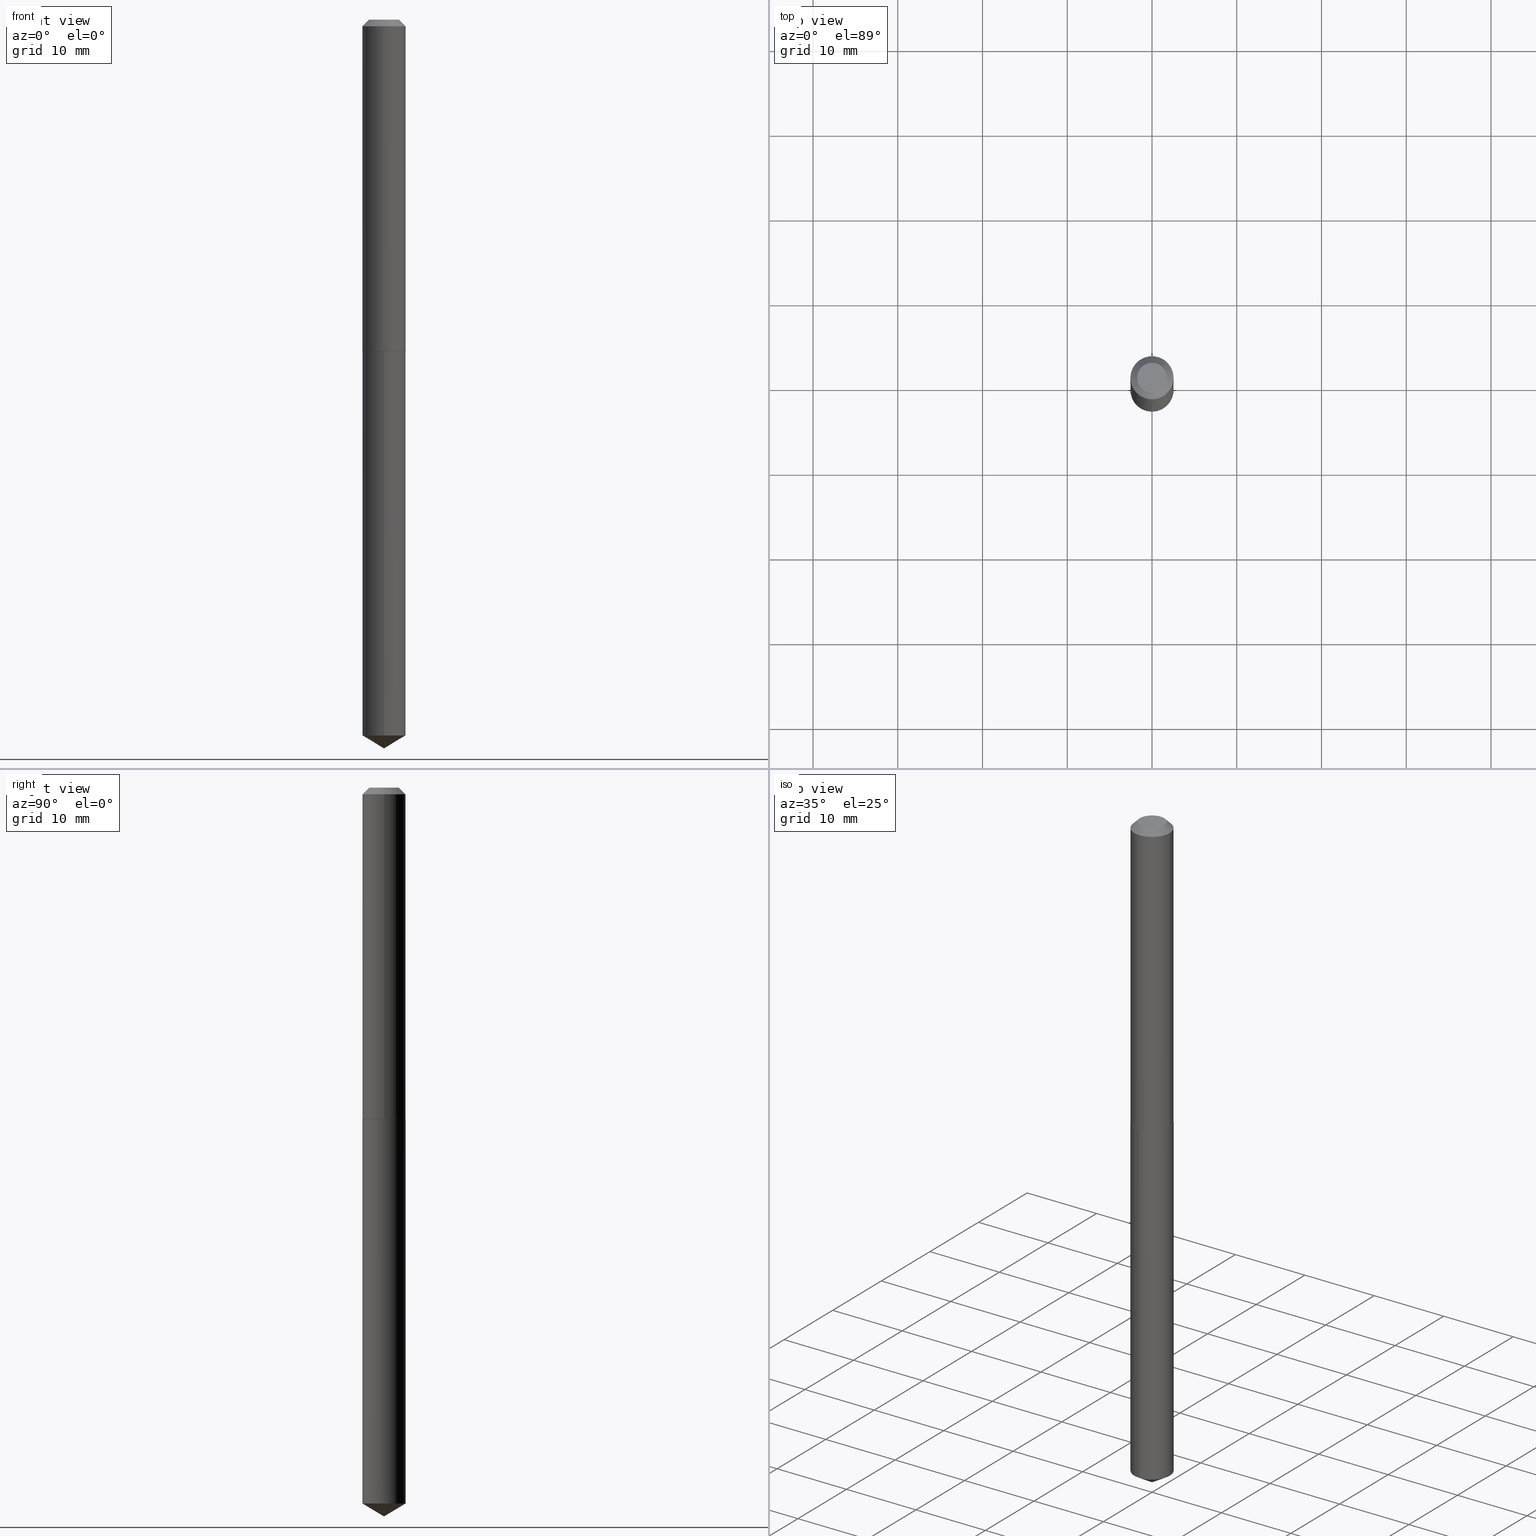
[diagram: canonical four-view strip — front | top / right | iso, engineering-drawing reading convention]
A machine part, canonical four-view strip (front | top / right | iso — engineering-drawing reading convention). The complete STEP part file that produces these views, byte-faithful:
ISO-10303-21;
HEADER;
FILE_DESCRIPTION (( 'STEP AP203' ),
    '1' );
FILE_NAME ('68326.STEP',
    '2024-04-23T13:06:25',
    ( '' ),
    ( '' ),
    'SwSTEP 2.0',
    'SolidWorks 2023',
    '' );
FILE_SCHEMA (( 'CONFIG_CONTROL_DESIGN' ));
ENDSEC;

DATA;
#1 = CONICAL_SURFACE ( 'NONE', #352, 0.1004000000000001835, 0.7853981633971067744 ) ;
#2 = APPROVAL ( #253, 'UNSPECIFIED' ) ;
#3 = DATE_AND_TIME ( #295, #212 ) ;
#4 = EDGE_LOOP ( 'NONE', ( #121, #149, #96, #115 ) ) ;
#5 = LENGTH_MEASURE_WITH_UNIT ( LENGTH_MEASURE( 0.02539999999999999897 ), #211 );
#6 = ORIENTED_EDGE ( 'NONE', *, *, #166, .F. ) ;
#7 = PRODUCT_DEFINITION ( 'UNKNOWN', '', #256, #318 ) ;
#8 = COORDINATED_UNIVERSAL_TIME_OFFSET ( 5, 0, .BEHIND. ) ;
#9 = EDGE_LOOP ( 'NONE', ( #183, #95, #360, #371 ) ) ;
#10 = CIRCLE ( 'NONE', #136, 0.1004000000000000031 ) ;
#11 = CC_DESIGN_SECURITY_CLASSIFICATION ( #192, ( #256 ) ) ;
#12 = APPROVAL_ROLE ( '' ) ;
#13 = ORIENTED_EDGE ( 'NONE', *, *, #176, .T. ) ;
#14 = MECHANICAL_CONTEXT ( 'NONE', #80, 'mechanical' ) ;
#15 = EDGE_LOOP ( 'NONE', ( #36, #387, #158, #89 ) ) ;
#16 = EDGE_CURVE ( 'NONE', #238, #32, #243, .T. ) ;
#17 = LINE ( 'NONE', #164, #54 ) ;
#18 = AXIS2_PLACEMENT_3D ( 'NONE', #200, #53, #145 ) ;
#19 = DIRECTION ( 'NONE',  ( 1.000000000000000000, -6.982962677686265922E-15, 4.876176775795935793E-29 ) ) ;
#20 = DIRECTION ( 'NONE',  ( 1.000000000000000000, -6.982962677686269866E-15, 0.000000000000000000 ) ) ;
#21 = EDGE_CURVE ( 'NONE', #238, #34, #134, .T. ) ;
#22 = CARTESIAN_POINT ( 'NONE',  ( 8.279797769102040735E-29, -1.182155849837616200E-14, -3.385800000000000143 ) ) ;
#23 = AXIS2_PLACEMENT_3D ( 'NONE', #257, #101, #70 ) ;
#24 = DIRECTION ( 'NONE',  ( 2.445468806185136597E-29, -3.491481338843145583E-15, -1.000000000000000000 ) ) ;
#25 = DIRECTION ( 'NONE',  ( -2.445447979532766227E-29, 3.491511163794719536E-15, 1.000000000000000000 ) ) ;
#26 = DIRECTION ( 'NONE',  ( -2.445468806185136597E-29, 3.491481338843145583E-15, 1.000000000000000000 ) ) ;
#27 = CLOSED_SHELL ( 'NONE', ( #389, #170, #303, #82, #193, #209, #42, #308 ) ) ;
#28 = DIRECTION ( 'NONE',  ( -2.445447979532766227E-29, 3.491511163794719536E-15, 1.000000000000000000 ) ) ;
#29 = CARTESIAN_POINT ( 'NONE',  ( 7.133849067032221574E-16, 0.1003999999999946324, -1.539400000000000546 ) ) ;
#30 = DIRECTION ( 'NONE',  ( 2.438088387897960049E-29, -3.491481338843145188E-15, -1.000000000000000000 ) ) ;
#31 = CALENDAR_DATE ( 2024, 23, 4 ) ;
#32 = VERTEX_POINT ( 'NONE', #377 ) ;
#33 =( GEOMETRIC_REPRESENTATION_CONTEXT ( 3 ) GLOBAL_UNCERTAINTY_ASSIGNED_CONTEXT ( ( #159 ) ) GLOBAL_UNIT_ASSIGNED_CONTEXT ( ( #65, #119, #359 ) ) REPRESENTATION_CONTEXT ( 'NONE', 'WORKASPACE' ) );
#34 = VERTEX_POINT ( 'NONE', #47 ) ;
#35 = PERSON_AND_ORGANIZATION ( #340, #157 ) ;
#36 = ORIENTED_EDGE ( 'NONE', *, *, #370, .F. ) ;
#37 = PERSON_AND_ORGANIZATION_ROLE ( 'design_supplier' ) ;
#38 = ORIENTED_EDGE ( 'NONE', *, *, #166, .T. ) ;
#39 = VECTOR ( 'NONE', #228, 39.37007874015748143 ) ;
#40 = LOCAL_TIME ( 9, 6, 25.00000000000000000, #374 ) ;
#41 = ORIENTED_EDGE ( 'NONE', *, *, #137, .F. ) ;
#42 = ADVANCED_FACE ( 'NONE', ( #44 ), #73, .T. ) ;
#43 = VERTEX_POINT ( 'NONE', #72 ) ;
#44 = FACE_OUTER_BOUND ( 'NONE', #15, .T. ) ;
#45 = AXIS2_PLACEMENT_3D ( 'NONE', #167, #24, #162 ) ;
#46 = CC_DESIGN_APPROVAL ( #147, ( #7 ) ) ;
#47 = CARTESIAN_POINT ( 'NONE',  ( -7.010894528396199227E-16, -0.1004000000000116188, -3.325473593849633591 ) ) ;
#48 = CARTESIAN_POINT ( 'NONE',  ( -0.1004000000000000031, -2.027689805389141589E-15, -0.03125000000000020817 ) ) ;
#49 = SHAPE_DEFINITION_REPRESENTATION ( #108, #281 ) ;
#50 = LINE ( 'NONE', #227, #255 ) ;
#51 = LINE ( 'NONE', #314, #324 ) ;
#52 = CYLINDRICAL_SURFACE ( 'NONE', #372, 0.1004000000000000864 ) ;
#53 = DIRECTION ( 'NONE',  ( -2.445447979532766227E-29, 3.491511163794719536E-15, 1.000000000000000000 ) ) ;
#54 = VECTOR ( 'NONE', #280, 39.37007874015748143 ) ;
#55 = CARTESIAN_POINT ( 'NONE',  ( 0.1004000000000000031, -8.101982446785502760E-16, -0.03125000000000020817 ) ) ;
#56 = LOCAL_TIME ( 9, 6, 25.00000000000000000, #58 ) ;
#57 = DIRECTION ( 'NONE',  ( -2.445447979532766227E-29, 3.491511163794719536E-15, 1.000000000000000000 ) ) ;
#58 = COORDINATED_UNIVERSAL_TIME_OFFSET ( 5, 0, .BEHIND. ) ;
#59 = PERSON_AND_ORGANIZATION ( #340, #157 ) ;
#60 = ORIENTED_EDGE ( 'NONE', *, *, #348, .F. ) ;
#61 = CONICAL_SURFACE ( 'NONE', #363, 0.1004000000000001835, 0.7853981633971067744 ) ;
#62 = DATE_AND_TIME ( #31, #56 ) ;
#63 = VERTEX_POINT ( 'NONE', #189 ) ;
#64 = PERSON_AND_ORGANIZATION ( #340, #157 ) ;
#65 =( CONVERSION_BASED_UNIT ( 'INCH', #5 ) LENGTH_UNIT ( ) NAMED_UNIT ( #201 ) );
#66 = ORIENTED_EDGE ( 'NONE', *, *, #277, .F. ) ;
#67 = EDGE_CURVE ( 'NONE', #34, #32, #234, .T. ) ;
#68 = VECTOR ( 'NONE', #357, 39.37007874015748143 ) ;
#69 = ORIENTED_EDGE ( 'NONE', *, *, #67, .T. ) ;
#70 = DIRECTION ( 'NONE',  ( 1.000000000000000000, -6.982962677686269866E-15, 0.000000000000000000 ) ) ;
#71 = EDGE_CURVE ( 'NONE', #300, #43, #378, .T. ) ;
#72 = CARTESIAN_POINT ( 'NONE',  ( 0.09990000000000034963, -6.072384344516000194E-15, -1.539400000000000546 ) ) ;
#73 = CONICAL_SURFACE ( 'NONE', #45, 0.1004000000000000031, 0.7853981633974449483 ) ;
#74 = CYLINDRICAL_SURFACE ( 'NONE', #335, 0.1004000000000000864 ) ;
#75 = DIRECTION ( 'NONE',  ( 1.000000000000000000, -6.982962677686266711E-15, 0.000000000000000000 ) ) ;
#76 = DIRECTION ( 'NONE',  ( -2.445468806185136877E-29, 3.491481338843145188E-15, 1.000000000000000000 ) ) ;
#77 = CC_DESIGN_DATE_AND_TIME_ASSIGNMENT ( #62, #90, ( #7 ) ) ;
#78 = VECTOR ( 'NONE', #293, 39.37007874015748143 ) ;
#79 = CARTESIAN_POINT ( 'NONE',  ( -5.914800203170942927E-48, 8.444767105646556605E-34, 2.418677428316032251E-19 ) ) ;
#80 = APPLICATION_CONTEXT ( 'configuration controlled 3d designs of mechanical parts and assemblies' ) ;
#81 = DIRECTION ( 'NONE',  ( -2.445447979532766227E-29, 3.491511163794719536E-15, 1.000000000000000000 ) ) ;
#82 = ADVANCED_FACE ( 'NONE', ( #224 ), #138, .F. ) ;
#83 = DIRECTION ( 'NONE',  ( 1.000000000000000000, -6.982962677686267499E-15, 4.876150890010814113E-29 ) ) ;
#84 = EDGE_LOOP ( 'NONE', ( #91, #13, #180, #6 ) ) ;
#85 = CIRCLE ( 'NONE', #23, 0.1004000000000001835 ) ;
#86 = FACE_OUTER_BOUND ( 'NONE', #153, .T. ) ;
#87 = FACE_OUTER_BOUND ( 'NONE', #208, .T. ) ;
#88 = ADVANCED_FACE ( 'NONE', ( #225 ), #278, .F. ) ;
#89 = ORIENTED_EDGE ( 'NONE', *, *, #221, .T. ) ;
#90 = DATE_TIME_ROLE ( 'creation_date' ) ;
#91 = ORIENTED_EDGE ( 'NONE', *, *, #137, .T. ) ;
#92 = CIRCLE ( 'NONE', #297, 0.1004000000000000031 ) ;
#93 = CC_DESIGN_APPROVAL ( #337, ( #256 ) ) ;
#94 = DATE_AND_TIME ( #122, #125 ) ;
#95 = ORIENTED_EDGE ( 'NONE', *, *, #71, .T. ) ;
#96 = ORIENTED_EDGE ( 'NONE', *, *, #348, .T. ) ;
#97 = PERSON_AND_ORGANIZATION_ROLE ( 'creator' ) ;
#98 = ORIENTED_EDGE ( 'NONE', *, *, #264, .T. ) ;
#99 = DIRECTION ( 'NONE',  ( -2.445468806185136597E-29, 3.491481338843145583E-15, 1.000000000000000000 ) ) ;
#100 = DATE_TIME_ROLE ( 'classification_date' ) ;
#101 = DIRECTION ( 'NONE',  ( -2.445468806185136597E-29, 3.491481338843145583E-15, 1.000000000000000000 ) ) ;
#102 = APPLICATION_CONTEXT ( 'configuration controlled 3d designs of mechanical parts and assemblies' ) ;
#103 = CARTESIAN_POINT ( 'NONE',  ( 8.132304741617813534E-29, -1.161088226530009238E-14, -3.325473593849634035 ) ) ;
#104 = VECTOR ( 'NONE', #232, 39.37007874015748143 ) ;
#105 = CARTESIAN_POINT ( 'NONE',  ( 3.763331945838307250E-29, -5.373040632345718254E-15, -1.538900000000000379 ) ) ;
#106 = EDGE_CURVE ( 'NONE', #43, #270, #51, .T. ) ;
#107 = DIRECTION ( 'NONE',  ( -2.445468806185136597E-29, 3.491481338843145583E-15, 1.000000000000000000 ) ) ;
#108 = PRODUCT_DEFINITION_SHAPE ( 'NONE', 'NONE',  #7 ) ;
#109 = DIRECTION ( 'NONE',  ( 1.000000000000000000, -6.982962677686266711E-15, 0.000000000000000000 ) ) ;
#110 = AXIS2_PLACEMENT_3D ( 'NONE', #344, #190, #19 ) ;
#111 = CONICAL_SURFACE ( 'NONE', #330, 65.52281426576952583, 1.029744258676661861 ) ;
#112 = DIRECTION ( 'NONE',  ( -2.445468806185136597E-29, 3.491481338843145583E-15, 1.000000000000000000 ) ) ;
#113 = EDGE_CURVE ( 'NONE', #63, #151, #338, .T. ) ;
#114 = CARTESIAN_POINT ( 'NONE',  ( 0.1004000000000001835, -6.074130085185420909E-15, -1.538900000000000379 ) ) ;
#115 = ORIENTED_EDGE ( 'NONE', *, *, #274, .F. ) ;
#116 = DIRECTION ( 'NONE',  ( -6.982962677686266711E-15, -1.000000000000000000, 5.441928274231599754E-15 ) ) ;
#117 = CYLINDRICAL_SURFACE ( 'NONE', #148, 0.1004000000000000031 ) ;
#118 = CC_DESIGN_PERSON_AND_ORGANIZATION_ASSIGNMENT ( #301, #37, ( #256 ) ) ;
#119 =( NAMED_UNIT ( * ) PLANE_ANGLE_UNIT ( ) SI_UNIT ( $, .RADIAN. ) );
#120 = EDGE_LOOP ( 'NONE', ( #161, #237, #41, #124 ) ) ;
#121 = ORIENTED_EDGE ( 'NONE', *, *, #264, .F. ) ;
#122 = CALENDAR_DATE ( 2024, 23, 4 ) ;
#123 = CIRCLE ( 'NONE', #284, 0.06915000000000000313 ) ;
#124 = ORIENTED_EDGE ( 'NONE', *, *, #106, .F. ) ;
#125 = LOCAL_TIME ( 9, 6, 25.00000000000000000, #8 ) ;
#126 = PERSON_AND_ORGANIZATION ( #340, #157 ) ;
#127 = EDGE_LOOP ( 'NONE', ( #215, #268, #296 ) ) ;
#128 = ORIENTED_EDGE ( 'NONE', *, *, #113, .F. ) ;
#129 = CC_DESIGN_PERSON_AND_ORGANIZATION_ASSIGNMENT ( #35, #333, ( #139 ) ) ;
#130 = DIRECTION ( 'NONE',  ( 0.7071067811863059882, -2.468850131079726789E-15, 0.7071067811867890462 ) ) ;
#131 = AXIS2_PLACEMENT_3D ( 'NONE', #103, #283, #341 ) ;
#132 = DIRECTION ( 'NONE',  ( -2.445468806185136597E-29, 3.491481338843145583E-15, 1.000000000000000000 ) ) ;
#133 = DATE_AND_TIME ( #251, #204 ) ;
#134 = LINE ( 'NONE', #22, #342 ) ;
#135 = DIRECTION ( 'NONE',  ( 1.000000000000000000, -6.982962677686261977E-15, 0.000000000000000000 ) ) ;
#136 = AXIS2_PLACEMENT_3D ( 'NONE', #373, #107, #75 ) ;
#137 = EDGE_CURVE ( 'NONE', #270, #188, #85, .T. ) ;
#138 = PLANE ( 'NONE',  #110 ) ;
#139 = PRODUCT ( '68326', '68326', '', ( #14 ) ) ;
#140 = CARTESIAN_POINT ( 'NONE',  ( 7.133849067031780798E-16, 0.1003999999999946324, -1.539400000000000546 ) ) ;
#141 = LINE ( 'NONE', #140, #68 ) ;
#142 = EDGE_CURVE ( 'NONE', #302, #151, #10, .T. ) ;
#143 = EDGE_LOOP ( 'NONE', ( #362, #185 ) ) ;
#144 = CARTESIAN_POINT ( 'NONE',  ( 0.06915000000000000313, -6.361531136805061115E-16, 4.837354856671185917E-19 ) ) ;
#145 = DIRECTION ( 'NONE',  ( -6.982962677686266711E-15, -1.000000000000000000, 2.720964137115799877E-15 ) ) ;
#146 = CARTESIAN_POINT ( 'NONE',  ( -0.1004000000000001835, -4.659655725642575772E-15, -1.538900000000000379 ) ) ;
#147 = APPROVAL ( #361, 'UNSPECIFIED' ) ;
#148 = AXIS2_PLACEMENT_3D ( 'NONE', #288, #28, #382 ) ;
#149 = ORIENTED_EDGE ( 'NONE', *, *, #358, .T. ) ;
#150 = FACE_OUTER_BOUND ( 'NONE', #241, .T. ) ;
#151 = VERTEX_POINT ( 'NONE', #48 ) ;
#152 = CARTESIAN_POINT ( 'NONE',  ( 7.642090019328602662E-31, -1.091087918388490267E-16, -0.03125000000000020817 ) ) ;
#153 = EDGE_LOOP ( 'NONE', ( #273, #306, #263 ) ) ;
#154 = ADVANCED_FACE ( 'NONE', ( #381 ), #329, .T. ) ;
#155 = SECURITY_CLASSIFICATION_LEVEL ( 'unclassified' ) ;
#156 = EDGE_LOOP ( 'NONE', ( #69, #98, #298, #60 ) ) ;
#157 = ORGANIZATION ( 'UNSPECIFIED', 'UNSPECIFIED', '' ) ;
#158 = ORIENTED_EDGE ( 'NONE', *, *, #113, .T. ) ;
#159 = UNCERTAINTY_MEASURE_WITH_UNIT (LENGTH_MEASURE( 1.000000000000000082E-05 ), #65, 'distance_accuracy_value', 'NONE');
#160 = EDGE_CURVE ( 'NONE', #188, #270, #271, .T. ) ;
#161 = ORIENTED_EDGE ( 'NONE', *, *, #285, .T. ) ;
#162 = DIRECTION ( 'NONE',  ( -1.000000000000000000, 6.982962677686266711E-15, 0.000000000000000000 ) ) ;
#163 = AXIS2_PLACEMENT_3D ( 'NONE', #267, #244, #236 ) ;
#164 = CARTESIAN_POINT ( 'NONE',  ( -0.1004000000000000864, 7.133849067031412005E-16, -4.938610830615929898E-30 ) ) ;
#165 = CARTESIAN_POINT ( 'NONE',  ( -8.799764967951333348E-28, 1.256395568548913014E-13, 35.98427874015747818 ) ) ;
#166 = EDGE_CURVE ( 'NONE', #270, #302, #50, .T. ) ;
#167 = CARTESIAN_POINT ( 'NONE',  ( 7.642090019328602662E-31, -1.091087918388490267E-16, -0.03125000000000020817 ) ) ;
#168 = AXIS2_PLACEMENT_3D ( 'NONE', #258, #205, #390 ) ;
#169 = CARTESIAN_POINT ( 'NONE',  ( -1.182960040634188585E-47, 1.688953421129311321E-33, 4.837354856632064502E-19 ) ) ;
#170 = ADVANCED_FACE ( 'NONE', ( #312 ), #74, .T. ) ;
#171 = CARTESIAN_POINT ( 'NONE',  ( 0.000000000000000000, 0.000000000000000000, 0.000000000000000000 ) ) ;
#172 = CARTESIAN_POINT ( 'NONE',  ( 7.642090019328602662E-31, -1.091087918388490267E-16, -0.03125000000000020817 ) ) ;
#173 = AXIS2_PLACEMENT_3D ( 'NONE', #231, #81, #116 ) ;
#174 = DIRECTION ( 'NONE',  ( -1.000000000000000000, 6.982962677686265922E-15, -4.876176775795935793E-29 ) ) ;
#175 = DIRECTION ( 'NONE',  ( 1.000000000000000000, -6.982962677686269866E-15, 0.000000000000000000 ) ) ;
#176 = EDGE_CURVE ( 'NONE', #188, #151, #17, .T. ) ;
#177 = PERSON_AND_ORGANIZATION ( #340, #157 ) ;
#178 = CIRCLE ( 'NONE', #173, 0.1004000000000000031 ) ;
#179 = APPROVAL_ROLE ( '' ) ;
#180 = ORIENTED_EDGE ( 'NONE', *, *, #142, .F. ) ;
#181 = PERSON_AND_ORGANIZATION ( #340, #157 ) ;
#182 = CC_DESIGN_DATE_AND_TIME_ASSIGNMENT ( #133, #100, ( #192 ) ) ;
#183 = ORIENTED_EDGE ( 'NONE', *, *, #206, .F. ) ;
#184 = PERSON_AND_ORGANIZATION_ROLE ( 'creator' ) ;
#185 = ORIENTED_EDGE ( 'NONE', *, *, #274, .T. ) ;
#186 = DIRECTION ( 'NONE',  ( 2.445468806185136597E-29, -3.491481338843145583E-15, -1.000000000000000000 ) ) ;
#187 = AXIS2_PLACEMENT_3D ( 'NONE', #169, #384, #202 ) ;
#188 = VERTEX_POINT ( 'NONE', #380 ) ;
#189 = CARTESIAN_POINT ( 'NONE',  ( -0.06915000000000000313, 5.374262650814287077E-16, 4.837354856596389538E-19 ) ) ;
#190 = DIRECTION ( 'NONE',  ( -2.438088387897960049E-29, 3.491481338843145188E-15, 1.000000000000000000 ) ) ;
#191 = CIRCLE ( 'NONE', #18, 0.1004000000000000031 ) ;
#192 = SECURITY_CLASSIFICATION ( '', '', #155 ) ;
#193 = ADVANCED_FACE ( 'NONE', ( #349 ), #61, .T. ) ;
#194 = CARTESIAN_POINT ( 'NONE',  ( 0.000000000000000000, 0.000000000000000000, 0.000000000000000000 ) ) ;
#195 = CARTESIAN_POINT ( 'NONE',  ( 3.764554680241400051E-29, -5.374786373015138969E-15, -1.539400000000000324 ) ) ;
#196 = DIRECTION ( 'NONE',  ( -6.982962677686265922E-15, -1.000000000000000000, 3.468864327941536233E-15 ) ) ;
#197 = AXIS2_PLACEMENT_3D ( 'NONE', #195, #249, #254 ) ;
#198 = CC_DESIGN_PERSON_AND_ORGANIZATION_ASSIGNMENT ( #64, #184, ( #256 ) ) ;
#199 = CYLINDRICAL_SURFACE ( 'NONE', #239, 0.1004000000000000031 ) ;
#200 = CARTESIAN_POINT ( 'NONE',  ( 3.764554680241400051E-29, -5.374786373015138969E-15, -1.539400000000000324 ) ) ;
#201 = DIMENSIONAL_EXPONENTS ( 1.000000000000000000, 0.000000000000000000, 0.000000000000000000, 0.000000000000000000, 0.000000000000000000, 0.000000000000000000, 0.000000000000000000 ) ;
#202 = DIRECTION ( 'NONE',  ( 1.000000000000000000, -6.982962677686267499E-15, 4.876150890010814113E-29 ) ) ;
#203 = AXIS2_PLACEMENT_3D ( 'NONE', #172, #266, #109 ) ;
#204 = LOCAL_TIME ( 9, 6, 25.00000000000000000, #346 ) ;
#205 = DIRECTION ( 'NONE',  ( -2.445468806185136597E-29, 3.491481338843145583E-15, 1.000000000000000000 ) ) ;
#206 = EDGE_CURVE ( 'NONE', #300, #188, #252, .T. ) ;
#207 = PLANE ( 'NONE',  #247 ) ;
#208 = EDGE_LOOP ( 'NONE', ( #220, #336 ) ) ;
#209 = ADVANCED_FACE ( 'NONE', ( #388 ), #52, .T. ) ;
#210 = AXIS2_PLACEMENT_3D ( 'NONE', #313, #132, #135 ) ;
#211 =( LENGTH_UNIT ( ) NAMED_UNIT ( * ) SI_UNIT ( $, .METRE. ) );
#212 = LOCAL_TIME ( 9, 6, 25.00000000000000000, #272 ) ;
#213 = ORIENTED_EDGE ( 'NONE', *, *, #71, .F. ) ;
#214 = APPROVAL_DATE_TIME ( #94, #337 ) ;
#215 = ORIENTED_EDGE ( 'NONE', *, *, #16, .F. ) ;
#216 = PERSON_AND_ORGANIZATION_ROLE ( 'classification_officer' ) ;
#217 = DIRECTION ( 'NONE',  ( 6.090539988449806046E-15, 0.8571673007021179957, 0.5150380749100448297 ) ) ;
#218 = APPLICATION_PROTOCOL_DEFINITION ( 'international standard', 'config_control_design', 1994, #80 ) ;
#219 = VECTOR ( 'NONE', #217, 39.37007874015748143 ) ;
#220 = ORIENTED_EDGE ( 'NONE', *, *, #250, .T. ) ;
#221 = EDGE_CURVE ( 'NONE', #151, #302, #317, .T. ) ;
#222 = PERSON_AND_ORGANIZATION ( #340, #157 ) ;
#223 = DIRECTION ( 'NONE',  ( -5.985567269335968101E-15, -0.8571673007021142210, 0.5150380749100507138 ) ) ;
#224 = FACE_OUTER_BOUND ( 'NONE', #245, .T. ) ;
#225 = FACE_OUTER_BOUND ( 'NONE', #143, .T. ) ;
#226 = CLOSED_SHELL ( 'NONE', ( #315, #383, #154, #289, #88 ) ) ;
#227 = CARTESIAN_POINT ( 'NONE',  ( 0.1004000000000000864, -7.010894528397017670E-16, 4.895681482899124059E-30 ) ) ;
#228 = DIRECTION ( 'NONE',  ( -0.7071067811865451302, 2.468850131082231817E-15, -0.7071067811865499042 ) ) ;
#229 = FACE_OUTER_BOUND ( 'NONE', #156, .T. ) ;
#230 = VECTOR ( 'NONE', #356, 39.37007874015748143 ) ;
#231 = CARTESIAN_POINT ( 'NONE',  ( 8.132304741617813534E-29, -1.161088226530009238E-14, -3.325473593849634035 ) ) ;
#232 = DIRECTION ( 'NONE',  ( -0.7071067811863059882, 7.493145998869481680E-15, 0.7071067811867890462 ) ) ;
#233 = CARTESIAN_POINT ( 'NONE',  ( 0.1004000000000000031, -7.979027908151109411E-16, -0.03125000000000020817 ) ) ;
#234 = CIRCLE ( 'NONE', #131, 0.1004000000000000031 ) ;
#235 = FACE_OUTER_BOUND ( 'NONE', #120, .T. ) ;
#236 = DIRECTION ( 'NONE',  ( 1.000000000000000000, 0.000000000000000000, 0.000000000000000000 ) ) ;
#237 = ORIENTED_EDGE ( 'NONE', *, *, #206, .T. ) ;
#238 = VERTEX_POINT ( 'NONE', #262 ) ;
#239 = AXIS2_PLACEMENT_3D ( 'NONE', #386, #57, #292 ) ;
#240 = DIRECTION ( 'NONE',  ( -6.982962677686265922E-15, -1.000000000000000000, 3.468864327941536233E-15 ) ) ;
#241 = EDGE_LOOP ( 'NONE', ( #66, #307, #323, #128 ) ) ;
#242 = CARTESIAN_POINT ( 'NONE',  ( -8.799764967951333348E-28, 1.256395568548913014E-13, 35.98427874015747818 ) ) ;
#243 = LINE ( 'NONE', #368, #219 ) ;
#244 = DIRECTION ( 'NONE',  ( 0.000000000000000000, 0.000000000000000000, 1.000000000000000000 ) ) ;
#245 = EDGE_LOOP ( 'NONE', ( #334, #213 ) ) ;
#246 = APPROVAL_ROLE ( '' ) ;
#247 = AXIS2_PLACEMENT_3D ( 'NONE', #79, #30, #174 ) ;
#248 = DIRECTION ( 'NONE',  ( -2.445447979532766227E-29, 3.491511163794719536E-15, 1.000000000000000000 ) ) ;
#249 = DIRECTION ( 'NONE',  ( 2.445447979532765946E-29, -3.491511163794719536E-15, -1.000000000000000000 ) ) ;
#250 = EDGE_CURVE ( 'NONE', #63, #332, #260, .T. ) ;
#251 = CALENDAR_DATE ( 2024, 23, 4 ) ;
#252 = LINE ( 'NONE', #146, #104 ) ;
#253 = APPROVAL_STATUS ( 'not_yet_approved' ) ;
#254 = DIRECTION ( 'NONE',  ( 6.982962677686265922E-15, 1.000000000000000000, -3.491511163794719536E-15 ) ) ;
#255 = VECTOR ( 'NONE', #76, 39.37007874015748143 ) ;
#256 = PRODUCT_DEFINITION_FORMATION_WITH_SPECIFIED_SOURCE ( 'ANY', '', #139, .NOT_KNOWN. ) ;
#257 = CARTESIAN_POINT ( 'NONE',  ( 3.763331945838307250E-29, -5.373040632345718254E-15, -1.538900000000000379 ) ) ;
#258 = CARTESIAN_POINT ( 'NONE',  ( 3.764554680241400612E-29, -5.374786373015140547E-15, -1.539400000000000546 ) ) ;
#259 = CARTESIAN_POINT ( 'NONE',  ( -7.010894528396636059E-16, -0.1004000000000053877, -1.539399999999999880 ) ) ;
#260 = CIRCLE ( 'NONE', #187, 0.06915000000000000313 ) ;
#261 = APPROVAL_PERSON_ORGANIZATION ( #181, #337, #12 ) ;
#262 = CARTESIAN_POINT ( 'NONE',  ( 8.279797769102040735E-29, -1.182155849837616200E-14, -3.385800000000000143 ) ) ;
#263 = ORIENTED_EDGE ( 'NONE', *, *, #67, .F. ) ;
#264 = EDGE_CURVE ( 'NONE', #32, #355, #141, .T. ) ;
#265 = LINE ( 'NONE', #233, #230 ) ;
#266 = DIRECTION ( 'NONE',  ( -2.445468806185136597E-29, 3.491481338843145583E-15, 1.000000000000000000 ) ) ;
#267 = CARTESIAN_POINT ( 'NONE',  ( 0.000000000000000000, 0.000000000000000000, 0.000000000000000000 ) ) ;
#268 = ORIENTED_EDGE ( 'NONE', *, *, #21, .T. ) ;
#269 = DIRECTION ( 'NONE',  ( -1.000000000000000000, 6.982962677686266711E-15, 0.000000000000000000 ) ) ;
#270 = VERTEX_POINT ( 'NONE', #114 ) ;
#271 = CIRCLE ( 'NONE', #291, 0.1004000000000001835 ) ;
#272 = COORDINATED_UNIVERSAL_TIME_OFFSET ( 5, 0, .BEHIND. ) ;
#273 = ORIENTED_EDGE ( 'NONE', *, *, #21, .F. ) ;
#274 = EDGE_CURVE ( 'NONE', #355, #275, #92, .T. ) ;
#275 = VERTEX_POINT ( 'NONE', #259 ) ;
#276 = DIRECTION ( 'NONE',  ( 1.000000000000000000, -6.982962677686266711E-15, 4.876176775795936353E-29 ) ) ;
#277 = EDGE_CURVE ( 'NONE', #332, #63, #123, .T. ) ;
#278 = PLANE ( 'NONE',  #197 ) ;
#279 = DIRECTION ( 'NONE',  ( -2.445468806185136597E-29, 3.491481338843145583E-15, 1.000000000000000000 ) ) ;
#280 = DIRECTION ( 'NONE',  ( -2.445468806185136877E-29, 3.491481338843145188E-15, 1.000000000000000000 ) ) ;
#281 = ADVANCED_BREP_SHAPE_REPRESENTATION ( '68326', ( #345, #347, #163 ), #33 ) ;
#282 = CALENDAR_DATE ( 2024, 23, 4 ) ;
#283 = DIRECTION ( 'NONE',  ( -2.445447979532766227E-29, 3.491511163794719536E-15, 1.000000000000000000 ) ) ;
#284 = AXIS2_PLACEMENT_3D ( 'NONE', #353, #112, #83 ) ;
#285 = EDGE_CURVE ( 'NONE', #43, #300, #311, .T. ) ;
#286 = CARTESIAN_POINT ( 'NONE',  ( 3.764554680241400051E-29, -5.374786373015138969E-15, -1.539400000000000324 ) ) ;
#287 = DIRECTION ( 'NONE',  ( 1.000000000000000000, -6.982962677686266711E-15, 4.876176775795936353E-29 ) ) ;
#288 = CARTESIAN_POINT ( 'NONE',  ( 3.764554680241400051E-29, -5.374786373015138969E-15, -1.539400000000000324 ) ) ;
#289 = ADVANCED_FACE ( 'NONE', ( #325 ), #117, .T. ) ;
#290 = ORIENTED_EDGE ( 'NONE', *, *, #160, .T. ) ;
#291 = AXIS2_PLACEMENT_3D ( 'NONE', #105, #99, #350 ) ;
#292 = DIRECTION ( 'NONE',  ( -6.982962677686266711E-15, -1.000000000000000000, 2.720964137115799877E-15 ) ) ;
#293 = DIRECTION ( 'NONE',  ( -2.445447979532765946E-29, 3.491511163794719536E-15, 1.000000000000000000 ) ) ;
#294 = CC_DESIGN_PERSON_AND_ORGANIZATION_ASSIGNMENT ( #126, #216, ( #192 ) ) ;
#295 = CALENDAR_DATE ( 2024, 23, 4 ) ;
#296 = ORIENTED_EDGE ( 'NONE', *, *, #358, .F. ) ;
#297 = AXIS2_PLACEMENT_3D ( 'NONE', #286, #25, #354 ) ;
#298 = ORIENTED_EDGE ( 'NONE', *, *, #365, .F. ) ;
#299 = APPROVAL_STATUS ( 'not_yet_approved' ) ;
#300 = VERTEX_POINT ( 'NONE', #322 ) ;
#301 = PERSON_AND_ORGANIZATION ( #340, #157 ) ;
#302 = VERTEX_POINT ( 'NONE', #55 ) ;
#303 = ADVANCED_FACE ( 'NONE', ( #235 ), #1, .T. ) ;
#304 = AXIS2_PLACEMENT_3D ( 'NONE', #165, #248, #196 ) ;
#305 = CC_DESIGN_APPROVAL ( #2, ( #192 ) ) ;
#306 = ORIENTED_EDGE ( 'NONE', *, *, #16, .T. ) ;
#307 = ORIENTED_EDGE ( 'NONE', *, *, #370, .T. ) ;
#308 = ADVANCED_FACE ( 'NONE', ( #87 ), #207, .F. ) ;
#309 = CARTESIAN_POINT ( 'NONE',  ( 3.763331945838307250E-29, -5.373040632345718254E-15, -1.538900000000000379 ) ) ;
#310 = PRODUCT_RELATED_PRODUCT_CATEGORY ( 'detail', '', ( #139 ) ) ;
#311 = CIRCLE ( 'NONE', #168, 0.09990000000000034963 ) ;
#312 = FACE_OUTER_BOUND ( 'NONE', #84, .T. ) ;
#313 = CARTESIAN_POINT ( 'NONE',  ( 3.764554680241400612E-29, -5.374786373015140547E-15, -1.539400000000000546 ) ) ;
#314 = CARTESIAN_POINT ( 'NONE',  ( 0.1004000000000001835, -6.074130085185420909E-15, -1.538900000000000379 ) ) ;
#315 = ADVANCED_FACE ( 'NONE', ( #229 ), #199, .T. ) ;
#316 = DIRECTION ( 'NONE',  ( -2.445468806185136597E-29, 3.491481338843145583E-15, 1.000000000000000000 ) ) ;
#317 = CIRCLE ( 'NONE', #203, 0.1004000000000000031 ) ;
#318 = DESIGN_CONTEXT ( 'detailed design', #102, 'design' ) ;
#319 = CARTESIAN_POINT ( 'NONE',  ( -7.010894528396636059E-16, -0.1004000000000053877, -1.539399999999999880 ) ) ;
#320 = CC_DESIGN_PERSON_AND_ORGANIZATION_ASSIGNMENT ( #59, #97, ( #7 ) ) ;
#321 = LINE ( 'NONE', #319, #78 ) ;
#322 = CARTESIAN_POINT ( 'NONE',  ( -0.09990000000000034963, -4.662304952816686973E-15, -1.539400000000000546 ) ) ;
#323 = ORIENTED_EDGE ( 'NONE', *, *, #142, .T. ) ;
#324 = VECTOR ( 'NONE', #130, 39.37007874015748143 ) ;
#325 = FACE_OUTER_BOUND ( 'NONE', #4, .T. ) ;
#326 = DIRECTION ( 'NONE',  ( -2.445468806185136597E-29, 3.491481338843145583E-15, 1.000000000000000000 ) ) ;
#327 = APPLICATION_PROTOCOL_DEFINITION ( 'international standard', 'config_control_design', 1994, #102 ) ;
#328 = ORIENTED_EDGE ( 'NONE', *, *, #176, .F. ) ;
#329 = CONICAL_SURFACE ( 'NONE', #304, 65.52281426576952583, 1.029744258676661861 ) ;
#330 = AXIS2_PLACEMENT_3D ( 'NONE', #242, #367, #240 ) ;
#331 = EDGE_LOOP ( 'NONE', ( #328, #290, #38, #366 ) ) ;
#332 = VERTEX_POINT ( 'NONE', #144 ) ;
#333 = PERSON_AND_ORGANIZATION_ROLE ( 'design_owner' ) ;
#334 = ORIENTED_EDGE ( 'NONE', *, *, #285, .F. ) ;
#335 = AXIS2_PLACEMENT_3D ( 'NONE', #194, #316, #276 ) ;
#336 = ORIENTED_EDGE ( 'NONE', *, *, #277, .T. ) ;
#337 = APPROVAL ( #299, 'UNSPECIFIED' ) ;
#338 = LINE ( 'NONE', #375, #39 ) ;
#339 = APPROVAL_DATE_TIME ( #376, #2 ) ;
#340 = PERSON ( 'UNSPECIFIED', 'UNSPECIFIED', 'UNSPECIFIED', ('UNSPECIFIED'), ('UNSPECIFIED'), ('UNSPECIFIED') ) ;
#341 = DIRECTION ( 'NONE',  ( -6.982962677686266711E-15, -1.000000000000000000, 5.441928274231599754E-15 ) ) ;
#342 = VECTOR ( 'NONE', #223, 39.37007874015748854 ) ;
#343 = APPROVAL_PERSON_ORGANIZATION ( #177, #147, #179 ) ;
#344 = CARTESIAN_POINT ( 'NONE',  ( 8.249952469089983672E-30, -9.584402790879764099E-15, -1.539400000000000546 ) ) ;
#345 = MANIFOLD_SOLID_BREP ( 'Body-Move/Copy2[1]', #226 ) ;
#346 = COORDINATED_UNIVERSAL_TIME_OFFSET ( 5, 0, .BEHIND. ) ;
#347 = MANIFOLD_SOLID_BREP ( 'Body-Move/Copy2[2]', #27 ) ;
#348 = EDGE_CURVE ( 'NONE', #34, #275, #321, .T. ) ;
#349 = FACE_OUTER_BOUND ( 'NONE', #9, .T. ) ;
#350 = DIRECTION ( 'NONE',  ( 1.000000000000000000, -6.982962677686269866E-15, 0.000000000000000000 ) ) ;
#351 = CARTESIAN_POINT ( 'NONE',  ( 3.763331945838307250E-29, -5.373040632345718254E-15, -1.538900000000000379 ) ) ;
#352 = AXIS2_PLACEMENT_3D ( 'NONE', #351, #326, #175 ) ;
#353 = CARTESIAN_POINT ( 'NONE',  ( -1.182960040634188585E-47, 1.688953421129311321E-33, 4.837354856632064502E-19 ) ) ;
#354 = DIRECTION ( 'NONE',  ( -6.982962677686266711E-15, -1.000000000000000000, 2.720964137115799877E-15 ) ) ;
#355 = VERTEX_POINT ( 'NONE', #29 ) ;
#356 = DIRECTION ( 'NONE',  ( 0.7071067811865451302, -7.319954787623248157E-15, -0.7071067811865499042 ) ) ;
#357 = DIRECTION ( 'NONE',  ( -2.445447979532765946E-29, 3.491511163794719536E-15, 1.000000000000000000 ) ) ;
#358 = EDGE_CURVE ( 'NONE', #32, #34, #178, .T. ) ;
#359 =( NAMED_UNIT ( * ) SI_UNIT ( $, .STERADIAN. ) SOLID_ANGLE_UNIT ( ) );
#360 = ORIENTED_EDGE ( 'NONE', *, *, #106, .T. ) ;
#361 = APPROVAL_STATUS ( 'not_yet_approved' ) ;
#362 = ORIENTED_EDGE ( 'NONE', *, *, #365, .T. ) ;
#363 = AXIS2_PLACEMENT_3D ( 'NONE', #309, #279, #20 ) ;
#364 = APPROVAL_PERSON_ORGANIZATION ( #222, #2, #246 ) ;
#365 = EDGE_CURVE ( 'NONE', #275, #355, #191, .T. ) ;
#366 = ORIENTED_EDGE ( 'NONE', *, *, #221, .F. ) ;
#367 = DIRECTION ( 'NONE',  ( -2.445447979532766227E-29, 3.491511163794719536E-15, 1.000000000000000000 ) ) ;
#368 = CARTESIAN_POINT ( 'NONE',  ( 8.279862452465693311E-29, -1.182146667331525717E-14, -3.385800000000000143 ) ) ;
#369 = APPROVAL_DATE_TIME ( #3, #147 ) ;
#370 = EDGE_CURVE ( 'NONE', #332, #302, #265, .T. ) ;
#371 = ORIENTED_EDGE ( 'NONE', *, *, #160, .F. ) ;
#372 = AXIS2_PLACEMENT_3D ( 'NONE', #171, #26, #287 ) ;
#373 = CARTESIAN_POINT ( 'NONE',  ( 7.642090019328602662E-31, -1.091087918388490267E-16, -0.03125000000000020817 ) ) ;
#374 = COORDINATED_UNIVERSAL_TIME_OFFSET ( 5, 0, .BEHIND. ) ;
#375 = CARTESIAN_POINT ( 'NONE',  ( -0.1004000000000000031, 5.919806610008520747E-16, -0.03125000000000020817 ) ) ;
#376 = DATE_AND_TIME ( #282, #40 ) ;
#377 = CARTESIAN_POINT ( 'NONE',  ( 7.133849067032217629E-16, 0.1003999999999884013, -3.325473593849634923 ) ) ;
#378 = CIRCLE ( 'NONE', #210, 0.09990000000000034963 ) ;
#379 = AXIS2_PLACEMENT_3D ( 'NONE', #152, #186, #269 ) ;
#380 = CARTESIAN_POINT ( 'NONE',  ( -0.1004000000000001835, -4.659655725642575772E-15, -1.538900000000000379 ) ) ;
#381 = FACE_OUTER_BOUND ( 'NONE', #127, .T. ) ;
#382 = DIRECTION ( 'NONE',  ( -6.982962677686266711E-15, -1.000000000000000000, 2.720964137115799877E-15 ) ) ;
#383 = ADVANCED_FACE ( 'NONE', ( #86 ), #111, .T. ) ;
#384 = DIRECTION ( 'NONE',  ( -2.445468806185136597E-29, 3.491481338843145583E-15, 1.000000000000000000 ) ) ;
#385 = CONICAL_SURFACE ( 'NONE', #379, 0.1004000000000000031, 0.7853981633974449483 ) ;
#386 = CARTESIAN_POINT ( 'NONE',  ( 3.764554680241400051E-29, -5.374786373015138969E-15, -1.539400000000000324 ) ) ;
#387 = ORIENTED_EDGE ( 'NONE', *, *, #250, .F. ) ;
#388 = FACE_OUTER_BOUND ( 'NONE', #331, .T. ) ;
#389 = ADVANCED_FACE ( 'NONE', ( #150 ), #385, .T. ) ;
#390 = DIRECTION ( 'NONE',  ( 1.000000000000000000, -6.982962677686261977E-15, 0.000000000000000000 ) ) ;
ENDSEC;
END-ISO-10303-21;
